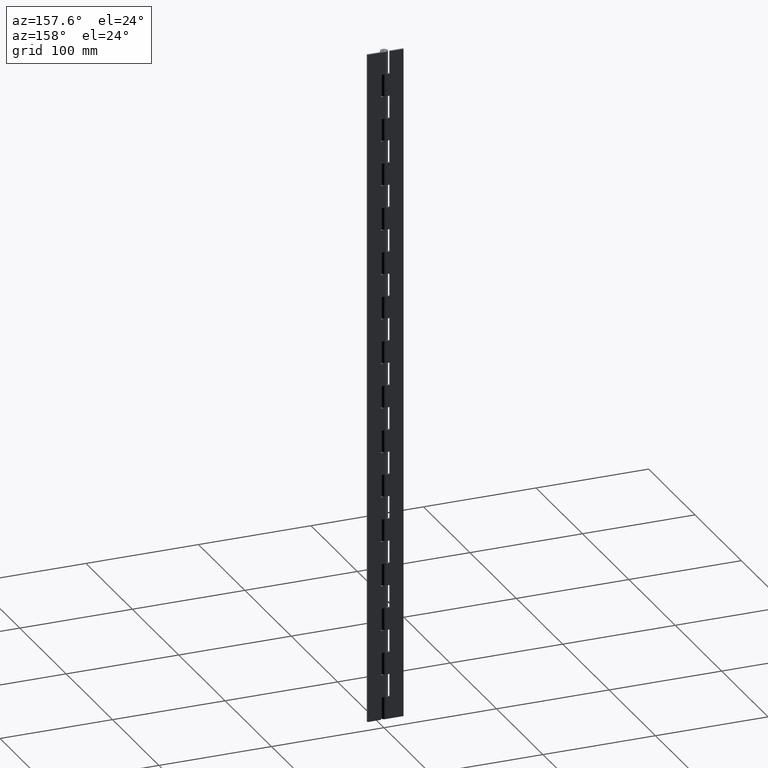
[diagram: clean part render]
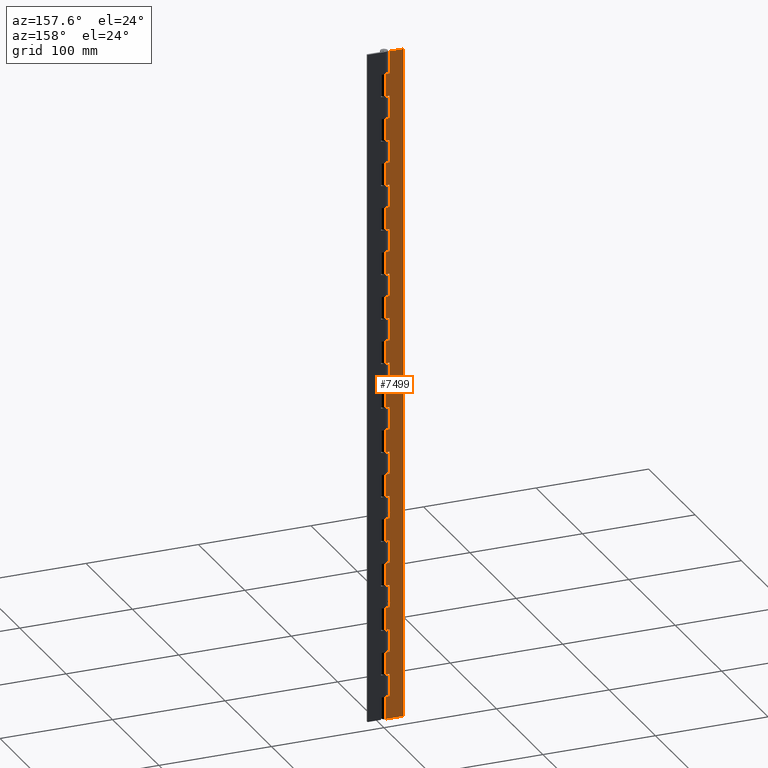
[diagram: same view with one face highlighted and labeled with its STEP entity id]
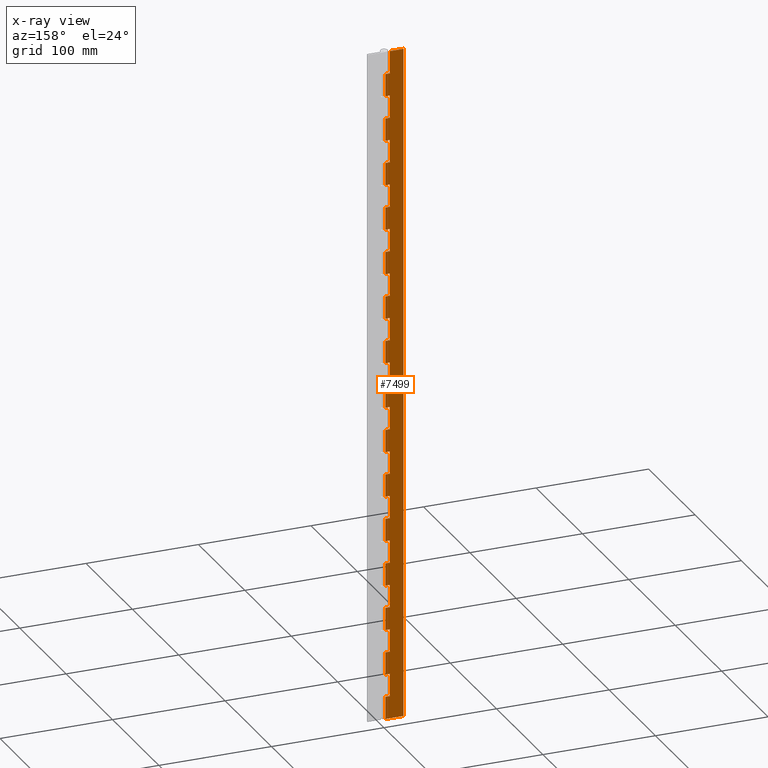
[diagram: x-ray of the same camera — body ghosted, the highlighted face saturated]
A machine part, auxiliary view. The second image highlights one B-rep face of the part: STEP entity #7499.
The next image is the same camera in x-ray: the body ghosted, the highlighted face saturated — about 0% of this face is hidden behind the body in this view.
In plain terms, the highlighted face is a freeform B-spline surface patch.
Its self-contained STEP definition (entity closure, byte-faithful):
#4469=CARTESIAN_POINT('',(1.989998E-016,3.250000000000000,20.000021999999952));
#4470=VERTEX_POINT('',#4469);
#4490=CARTESIAN_POINT('',(-4.0,3.250000000000000,20.000021999999952));
#4491=VERTEX_POINT('',#4490);
#4492=CARTESIAN_POINT('',(1.989998E-016,3.250000000000000,20.000021999999952));
#4493=CARTESIAN_POINT('',(-4.0,3.250000000000000,20.000021999999952));
#4494=QUASI_UNIFORM_CURVE('',1,(#4492,#4493),.UNSPECIFIED.,.F.,.U.);
#4495=EDGE_CURVE('',#4470,#4491,#4494,.T.);
#4545=CARTESIAN_POINT('',(1.989998E-016,3.250000000000000,40.000021999999952));
#4546=VERTEX_POINT('',#4545);
#4603=CARTESIAN_POINT('',(-4.0,3.250000000000000,40.000021999999952));
#4604=VERTEX_POINT('',#4603);
#4610=CARTESIAN_POINT('',(-4.0,3.250000000000000,40.000021999999952));
#4611=CARTESIAN_POINT('',(1.989998E-016,3.250000000000000,40.000021999999952));
#4612=QUASI_UNIFORM_CURVE('',1,(#4610,#4611),.UNSPECIFIED.,.F.,.U.);
#4613=EDGE_CURVE('',#4604,#4546,#4612,.T.);
#4624=CARTESIAN_POINT('',(-4.0,3.250000000000000,20.000021999999952));
#4625=CARTESIAN_POINT('',(-4.0,3.250000000000000,40.000021999999952));
#4626=QUASI_UNIFORM_CURVE('',1,(#4624,#4625),.UNSPECIFIED.,.F.,.U.);
#4627=EDGE_CURVE('',#4491,#4604,#4626,.T.);
#4645=CARTESIAN_POINT('',(1.989998E-016,3.250000000000000,60.000022000000001));
#4646=VERTEX_POINT('',#4645);
#4666=CARTESIAN_POINT('',(-4.0,3.250000000000000,60.000022000000001));
#4667=VERTEX_POINT('',#4666);
#4668=CARTESIAN_POINT('',(1.989998E-016,3.250000000000000,60.000022000000001));
#4669=CARTESIAN_POINT('',(-4.0,3.250000000000000,60.000022000000001));
#4670=QUASI_UNIFORM_CURVE('',1,(#4668,#4669),.UNSPECIFIED.,.F.,.U.);
#4671=EDGE_CURVE('',#4646,#4667,#4670,.T.);
#4721=CARTESIAN_POINT('',(1.989998E-016,3.250000000000000,80.000022000000001));
#4722=VERTEX_POINT('',#4721);
#4779=CARTESIAN_POINT('',(-4.0,3.250000000000000,80.000022000000001));
#4780=VERTEX_POINT('',#4779);
#4786=CARTESIAN_POINT('',(-4.0,3.250000000000000,80.000022000000001));
#4787=CARTESIAN_POINT('',(1.989998E-016,3.250000000000000,80.000022000000001));
#4788=QUASI_UNIFORM_CURVE('',1,(#4786,#4787),.UNSPECIFIED.,.F.,.U.);
#4789=EDGE_CURVE('',#4780,#4722,#4788,.T.);
#4800=CARTESIAN_POINT('',(-4.0,3.250000000000000,60.000022000000001));
#4801=CARTESIAN_POINT('',(-4.0,3.250000000000000,80.000022000000001));
#4802=QUASI_UNIFORM_CURVE('',1,(#4800,#4801),.UNSPECIFIED.,.F.,.U.);
#4803=EDGE_CURVE('',#4667,#4780,#4802,.T.);
#4821=CARTESIAN_POINT('',(1.989998E-016,3.250000000000000,100.000022000000000));
#4822=VERTEX_POINT('',#4821);
#4842=CARTESIAN_POINT('',(-4.0,3.250000000000000,100.000022000000000));
#4843=VERTEX_POINT('',#4842);
#4844=CARTESIAN_POINT('',(1.989998E-016,3.250000000000000,100.000022000000000));
#4845=CARTESIAN_POINT('',(-4.0,3.250000000000000,100.000022000000000));
#4846=QUASI_UNIFORM_CURVE('',1,(#4844,#4845),.UNSPECIFIED.,.F.,.U.);
#4847=EDGE_CURVE('',#4822,#4843,#4846,.T.);
#4897=CARTESIAN_POINT('',(1.989998E-016,3.250000000000000,120.000022000000000));
#4898=VERTEX_POINT('',#4897);
#4955=CARTESIAN_POINT('',(-4.0,3.250000000000000,120.000022000000000));
#4956=VERTEX_POINT('',#4955);
#4962=CARTESIAN_POINT('',(-4.0,3.250000000000000,120.000022000000000));
#4963=CARTESIAN_POINT('',(1.989998E-016,3.250000000000000,120.000022000000000));
#4964=QUASI_UNIFORM_CURVE('',1,(#4962,#4963),.UNSPECIFIED.,.F.,.U.);
#4965=EDGE_CURVE('',#4956,#4898,#4964,.T.);
#4976=CARTESIAN_POINT('',(-4.0,3.250000000000000,100.000022000000000));
#4977=CARTESIAN_POINT('',(-4.0,3.250000000000000,120.000022000000000));
#4978=QUASI_UNIFORM_CURVE('',1,(#4976,#4977),.UNSPECIFIED.,.F.,.U.);
#4979=EDGE_CURVE('',#4843,#4956,#4978,.T.);
#4997=CARTESIAN_POINT('',(1.989998E-016,3.250000000000000,140.000022000000000));
#4998=VERTEX_POINT('',#4997);
#5018=CARTESIAN_POINT('',(-4.0,3.250000000000000,140.000022000000000));
#5019=VERTEX_POINT('',#5018);
#5020=CARTESIAN_POINT('',(1.989998E-016,3.250000000000000,140.000022000000000));
#5021=CARTESIAN_POINT('',(-4.0,3.250000000000000,140.000022000000000));
#5022=QUASI_UNIFORM_CURVE('',1,(#5020,#5021),.UNSPECIFIED.,.F.,.U.);
#5023=EDGE_CURVE('',#4998,#5019,#5022,.T.);
#5073=CARTESIAN_POINT('',(1.989998E-016,3.250000000000000,160.000022000000000));
#5074=VERTEX_POINT('',#5073);
#5131=CARTESIAN_POINT('',(-4.0,3.250000000000000,160.000022000000000));
#5132=VERTEX_POINT('',#5131);
#5138=CARTESIAN_POINT('',(-4.0,3.250000000000000,160.000022000000000));
#5139=CARTESIAN_POINT('',(1.989998E-016,3.250000000000000,160.000022000000000));
#5140=QUASI_UNIFORM_CURVE('',1,(#5138,#5139),.UNSPECIFIED.,.F.,.U.);
#5141=EDGE_CURVE('',#5132,#5074,#5140,.T.);
#5152=CARTESIAN_POINT('',(-4.0,3.250000000000000,140.000022000000000));
#5153=CARTESIAN_POINT('',(-4.0,3.250000000000000,160.000022000000000));
#5154=QUASI_UNIFORM_CURVE('',1,(#5152,#5153),.UNSPECIFIED.,.F.,.U.);
#5155=EDGE_CURVE('',#5019,#5132,#5154,.T.);
#5173=CARTESIAN_POINT('',(1.989998E-016,3.250000000000000,180.000022000000000));
#5174=VERTEX_POINT('',#5173);
#5194=CARTESIAN_POINT('',(-4.0,3.250000000000000,180.000022000000000));
#5195=VERTEX_POINT('',#5194);
#5196=CARTESIAN_POINT('',(1.989998E-016,3.250000000000000,180.000022000000000));
#5197=CARTESIAN_POINT('',(-4.0,3.250000000000000,180.000022000000000));
#5198=QUASI_UNIFORM_CURVE('',1,(#5196,#5197),.UNSPECIFIED.,.F.,.U.);
#5199=EDGE_CURVE('',#5174,#5195,#5198,.T.);
#5249=CARTESIAN_POINT('',(1.989998E-016,3.250000000000000,200.000022000000000));
#5250=VERTEX_POINT('',#5249);
#5307=CARTESIAN_POINT('',(-4.0,3.250000000000000,200.000022000000000));
#5308=VERTEX_POINT('',#5307);
#5314=CARTESIAN_POINT('',(-4.0,3.250000000000000,200.000022000000000));
#5315=CARTESIAN_POINT('',(1.989998E-016,3.250000000000000,200.000022000000000));
#5316=QUASI_UNIFORM_CURVE('',1,(#5314,#5315),.UNSPECIFIED.,.F.,.U.);
#5317=EDGE_CURVE('',#5308,#5250,#5316,.T.);
#5328=CARTESIAN_POINT('',(-4.0,3.250000000000000,180.000022000000000));
#5329=CARTESIAN_POINT('',(-4.0,3.250000000000000,200.000022000000000));
#5330=QUASI_UNIFORM_CURVE('',1,(#5328,#5329),.UNSPECIFIED.,.F.,.U.);
#5331=EDGE_CURVE('',#5195,#5308,#5330,.T.);
#5349=CARTESIAN_POINT('',(1.989998E-016,3.250000000000000,220.000022000000000));
#5350=VERTEX_POINT('',#5349);
#5370=CARTESIAN_POINT('',(-4.0,3.250000000000000,220.000022000000000));
#5371=VERTEX_POINT('',#5370);
#5372=CARTESIAN_POINT('',(1.989998E-016,3.250000000000000,220.000022000000000));
#5373=CARTESIAN_POINT('',(-4.0,3.250000000000000,220.000022000000000));
#5374=QUASI_UNIFORM_CURVE('',1,(#5372,#5373),.UNSPECIFIED.,.F.,.U.);
#5375=EDGE_CURVE('',#5350,#5371,#5374,.T.);
#5425=CARTESIAN_POINT('',(1.989998E-016,3.250000000000000,240.000022000000000));
#5426=VERTEX_POINT('',#5425);
#5483=CARTESIAN_POINT('',(-4.0,3.250000000000000,240.000022000000000));
#5484=VERTEX_POINT('',#5483);
#5490=CARTESIAN_POINT('',(-4.0,3.250000000000000,240.000022000000000));
#5491=CARTESIAN_POINT('',(1.989998E-016,3.250000000000000,240.000022000000000));
#5492=QUASI_UNIFORM_CURVE('',1,(#5490,#5491),.UNSPECIFIED.,.F.,.U.);
#5493=EDGE_CURVE('',#5484,#5426,#5492,.T.);
#5504=CARTESIAN_POINT('',(-4.0,3.250000000000000,220.000022000000000));
#5505=CARTESIAN_POINT('',(-4.0,3.250000000000000,240.000022000000000));
#5506=QUASI_UNIFORM_CURVE('',1,(#5504,#5505),.UNSPECIFIED.,.F.,.U.);
#5507=EDGE_CURVE('',#5371,#5484,#5506,.T.);
#5525=CARTESIAN_POINT('',(1.989998E-016,3.250000000000000,260.000022000000000));
#5526=VERTEX_POINT('',#5525);
#5546=CARTESIAN_POINT('',(-4.0,3.250000000000000,260.000022000000000));
#5547=VERTEX_POINT('',#5546);
#5548=CARTESIAN_POINT('',(1.989998E-016,3.250000000000000,260.000022000000000));
#5549=CARTESIAN_POINT('',(-4.0,3.250000000000000,260.000022000000000));
#5550=QUASI_UNIFORM_CURVE('',1,(#5548,#5549),.UNSPECIFIED.,.F.,.U.);
#5551=EDGE_CURVE('',#5526,#5547,#5550,.T.);
#5601=CARTESIAN_POINT('',(1.989998E-016,3.250000000000000,280.000022000000000));
#5602=VERTEX_POINT('',#5601);
#5659=CARTESIAN_POINT('',(-4.0,3.250000000000000,280.000022000000000));
#5660=VERTEX_POINT('',#5659);
#5666=CARTESIAN_POINT('',(-4.0,3.250000000000000,280.000022000000000));
#5667=CARTESIAN_POINT('',(1.989998E-016,3.250000000000000,280.000022000000000));
#5668=QUASI_UNIFORM_CURVE('',1,(#5666,#5667),.UNSPECIFIED.,.F.,.U.);
#5669=EDGE_CURVE('',#5660,#5602,#5668,.T.);
#5680=CARTESIAN_POINT('',(-4.0,3.250000000000000,260.000022000000000));
#5681=CARTESIAN_POINT('',(-4.0,3.250000000000000,280.000022000000000));
#5682=QUASI_UNIFORM_CURVE('',1,(#5680,#5681),.UNSPECIFIED.,.F.,.U.);
#5683=EDGE_CURVE('',#5547,#5660,#5682,.T.);
#5701=CARTESIAN_POINT('',(1.989998E-016,3.250000000000000,300.000022000000000));
#5702=VERTEX_POINT('',#5701);
#5722=CARTESIAN_POINT('',(-4.0,3.250000000000000,300.000022000000000));
#5723=VERTEX_POINT('',#5722);
#5724=CARTESIAN_POINT('',(1.989998E-016,3.250000000000000,300.000022000000000));
#5725=CARTESIAN_POINT('',(-4.0,3.250000000000000,300.000022000000000));
#5726=QUASI_UNIFORM_CURVE('',1,(#5724,#5725),.UNSPECIFIED.,.F.,.U.);
#5727=EDGE_CURVE('',#5702,#5723,#5726,.T.);
#5777=CARTESIAN_POINT('',(1.989998E-016,3.250000000000000,320.000022000000000));
#5778=VERTEX_POINT('',#5777);
#5835=CARTESIAN_POINT('',(-4.0,3.250000000000000,320.000022000000000));
#5836=VERTEX_POINT('',#5835);
#5842=CARTESIAN_POINT('',(-4.0,3.250000000000000,320.000022000000000));
#5843=CARTESIAN_POINT('',(1.989998E-016,3.250000000000000,320.000022000000000));
#5844=QUASI_UNIFORM_CURVE('',1,(#5842,#5843),.UNSPECIFIED.,.F.,.U.);
#5845=EDGE_CURVE('',#5836,#5778,#5844,.T.);
#5856=CARTESIAN_POINT('',(-4.0,3.250000000000000,300.000022000000000));
#5857=CARTESIAN_POINT('',(-4.0,3.250000000000000,320.000022000000000));
#5858=QUASI_UNIFORM_CURVE('',1,(#5856,#5857),.UNSPECIFIED.,.F.,.U.);
#5859=EDGE_CURVE('',#5723,#5836,#5858,.T.);
#5877=CARTESIAN_POINT('',(1.989998E-016,3.250000000000000,340.000022000000000));
#5878=VERTEX_POINT('',#5877);
#5898=CARTESIAN_POINT('',(-4.0,3.250000000000000,340.000022000000000));
#5899=VERTEX_POINT('',#5898);
#5900=CARTESIAN_POINT('',(1.989998E-016,3.250000000000000,340.000022000000000));
#5901=CARTESIAN_POINT('',(-4.0,3.250000000000000,340.000022000000000));
#5902=QUASI_UNIFORM_CURVE('',1,(#5900,#5901),.UNSPECIFIED.,.F.,.U.);
#5903=EDGE_CURVE('',#5878,#5899,#5902,.T.);
#5953=CARTESIAN_POINT('',(1.989998E-016,3.250000000000000,360.000022000000000));
#5954=VERTEX_POINT('',#5953);
#6011=CARTESIAN_POINT('',(-4.0,3.250000000000000,360.000022000000000));
#6012=VERTEX_POINT('',#6011);
#6018=CARTESIAN_POINT('',(-4.0,3.250000000000000,360.000022000000000));
#6019=CARTESIAN_POINT('',(1.989998E-016,3.250000000000000,360.000022000000000));
#6020=QUASI_UNIFORM_CURVE('',1,(#6018,#6019),.UNSPECIFIED.,.F.,.U.);
#6021=EDGE_CURVE('',#6012,#5954,#6020,.T.);
#6032=CARTESIAN_POINT('',(-4.0,3.250000000000000,340.000022000000000));
#6033=CARTESIAN_POINT('',(-4.0,3.250000000000000,360.000022000000000));
#6034=QUASI_UNIFORM_CURVE('',1,(#6032,#6033),.UNSPECIFIED.,.F.,.U.);
#6035=EDGE_CURVE('',#5899,#6012,#6034,.T.);
#6053=CARTESIAN_POINT('',(1.989998E-016,3.250000000000000,380.000022000000000));
#6054=VERTEX_POINT('',#6053);
#6074=CARTESIAN_POINT('',(-4.0,3.250000000000000,380.000022000000000));
#6075=VERTEX_POINT('',#6074);
#6076=CARTESIAN_POINT('',(1.989998E-016,3.250000000000000,380.000022000000000));
#6077=CARTESIAN_POINT('',(-4.0,3.250000000000000,380.000022000000000));
#6078=QUASI_UNIFORM_CURVE('',1,(#6076,#6077),.UNSPECIFIED.,.F.,.U.);
#6079=EDGE_CURVE('',#6054,#6075,#6078,.T.);
#6129=CARTESIAN_POINT('',(1.989998E-016,3.250000000000000,400.000022000000000));
#6130=VERTEX_POINT('',#6129);
#6187=CARTESIAN_POINT('',(-4.0,3.250000000000000,400.000022000000000));
#6188=VERTEX_POINT('',#6187);
#6194=CARTESIAN_POINT('',(-4.0,3.250000000000000,400.000022000000000));
#6195=CARTESIAN_POINT('',(1.989998E-016,3.250000000000000,400.000022000000000));
#6196=QUASI_UNIFORM_CURVE('',1,(#6194,#6195),.UNSPECIFIED.,.F.,.U.);
#6197=EDGE_CURVE('',#6188,#6130,#6196,.T.);
#6208=CARTESIAN_POINT('',(-4.0,3.250000000000000,380.000022000000000));
#6209=CARTESIAN_POINT('',(-4.0,3.250000000000000,400.000022000000000));
#6210=QUASI_UNIFORM_CURVE('',1,(#6208,#6209),.UNSPECIFIED.,.F.,.U.);
#6211=EDGE_CURVE('',#6075,#6188,#6210,.T.);
#6229=CARTESIAN_POINT('',(1.989998E-016,3.250000000000000,420.000021999999890));
#6230=VERTEX_POINT('',#6229);
#6250=CARTESIAN_POINT('',(-4.0,3.250000000000000,420.000021999999890));
#6251=VERTEX_POINT('',#6250);
#6252=CARTESIAN_POINT('',(1.989998E-016,3.250000000000000,420.000021999999890));
#6253=CARTESIAN_POINT('',(-4.0,3.250000000000000,420.000021999999890));
#6254=QUASI_UNIFORM_CURVE('',1,(#6252,#6253),.UNSPECIFIED.,.F.,.U.);
#6255=EDGE_CURVE('',#6230,#6251,#6254,.T.);
#6305=CARTESIAN_POINT('',(1.989998E-016,3.250000000000000,440.000022000000000));
#6306=VERTEX_POINT('',#6305);
#6363=CARTESIAN_POINT('',(-4.0,3.250000000000000,440.000022000000000));
#6364=VERTEX_POINT('',#6363);
#6370=CARTESIAN_POINT('',(-4.0,3.250000000000000,440.000022000000000));
#6371=CARTESIAN_POINT('',(1.989998E-016,3.250000000000000,440.000022000000000));
#6372=QUASI_UNIFORM_CURVE('',1,(#6370,#6371),.UNSPECIFIED.,.F.,.U.);
#6373=EDGE_CURVE('',#6364,#6306,#6372,.T.);
#6384=CARTESIAN_POINT('',(-4.0,3.250000000000000,420.000021999999890));
#6385=CARTESIAN_POINT('',(-4.0,3.250000000000000,440.000022000000000));
#6386=QUASI_UNIFORM_CURVE('',1,(#6384,#6385),.UNSPECIFIED.,.F.,.U.);
#6387=EDGE_CURVE('',#6251,#6364,#6386,.T.);
#6405=CARTESIAN_POINT('',(1.989998E-016,3.250000000000000,460.000022000000000));
#6406=VERTEX_POINT('',#6405);
#6426=CARTESIAN_POINT('',(-4.0,3.250000000000000,460.000022000000000));
#6427=VERTEX_POINT('',#6426);
#6428=CARTESIAN_POINT('',(1.989998E-016,3.250000000000000,460.000022000000000));
#6429=CARTESIAN_POINT('',(-4.0,3.250000000000000,460.000022000000000));
#6430=QUASI_UNIFORM_CURVE('',1,(#6428,#6429),.UNSPECIFIED.,.F.,.U.);
#6431=EDGE_CURVE('',#6406,#6427,#6430,.T.);
#6481=CARTESIAN_POINT('',(1.989998E-016,3.250000000000000,480.000022000000000));
#6482=VERTEX_POINT('',#6481);
#6539=CARTESIAN_POINT('',(-4.0,3.250000000000000,480.000022000000000));
#6540=VERTEX_POINT('',#6539);
#6546=CARTESIAN_POINT('',(-4.0,3.250000000000000,480.000022000000000));
#6547=CARTESIAN_POINT('',(1.989998E-016,3.250000000000000,480.000022000000000));
#6548=QUASI_UNIFORM_CURVE('',1,(#6546,#6547),.UNSPECIFIED.,.F.,.U.);
#6549=EDGE_CURVE('',#6540,#6482,#6548,.T.);
#6560=CARTESIAN_POINT('',(-4.0,3.250000000000000,460.000022000000000));
#6561=CARTESIAN_POINT('',(-4.0,3.250000000000000,480.000022000000000));
#6562=QUASI_UNIFORM_CURVE('',1,(#6560,#6561),.UNSPECIFIED.,.F.,.U.);
#6563=EDGE_CURVE('',#6427,#6540,#6562,.T.);
#6581=CARTESIAN_POINT('',(1.989998E-016,3.250000000000000,500.000022000000110));
#6582=VERTEX_POINT('',#6581);
#6602=CARTESIAN_POINT('',(-4.0,3.250000000000000,500.000022000000110));
#6603=VERTEX_POINT('',#6602);
#6604=CARTESIAN_POINT('',(1.989998E-016,3.250000000000000,500.000022000000110));
#6605=CARTESIAN_POINT('',(-4.0,3.250000000000000,500.000022000000110));
#6606=QUASI_UNIFORM_CURVE('',1,(#6604,#6605),.UNSPECIFIED.,.F.,.U.);
#6607=EDGE_CURVE('',#6582,#6603,#6606,.T.);
#6657=CARTESIAN_POINT('',(1.989998E-016,3.250000000000000,520.000021999999940));
#6658=VERTEX_POINT('',#6657);
#6715=CARTESIAN_POINT('',(-4.0,3.250000000000000,520.000021999999940));
#6716=VERTEX_POINT('',#6715);
#6722=CARTESIAN_POINT('',(-4.0,3.250000000000000,520.000021999999940));
#6723=CARTESIAN_POINT('',(1.989998E-016,3.250000000000000,520.000021999999940));
#6724=QUASI_UNIFORM_CURVE('',1,(#6722,#6723),.UNSPECIFIED.,.F.,.U.);
#6725=EDGE_CURVE('',#6716,#6658,#6724,.T.);
#6736=CARTESIAN_POINT('',(-4.0,3.250000000000000,500.000022000000110));
#6737=CARTESIAN_POINT('',(-4.0,3.250000000000000,520.000021999999940));
#6738=QUASI_UNIFORM_CURVE('',1,(#6736,#6737),.UNSPECIFIED.,.F.,.U.);
#6739=EDGE_CURVE('',#6603,#6716,#6738,.T.);
#6785=CARTESIAN_POINT('',(0.0,3.250000000000000,540.000021999999940));
#6786=VERTEX_POINT('',#6785);
#6806=CARTESIAN_POINT('',(-4.0,3.250000000000000,540.000021999999940));
#6807=VERTEX_POINT('',#6806);
#6808=CARTESIAN_POINT('',(0.0,3.250000000000000,540.000021999999940));
#6809=CARTESIAN_POINT('',(-4.0,3.250000000000000,540.000021999999940));
#6810=QUASI_UNIFORM_CURVE('',1,(#6808,#6809),.UNSPECIFIED.,.F.,.U.);
#6811=EDGE_CURVE('',#6786,#6807,#6810,.T.);
#6835=CARTESIAN_POINT('',(-4.0,3.250000000000000,560.000021999999940));
#6836=VERTEX_POINT('',#6835);
#6842=CARTESIAN_POINT('',(0.0,3.250000000000000,560.000021999999940));
#6843=VERTEX_POINT('',#6842);
#6844=CARTESIAN_POINT('',(-4.0,3.250000000000000,560.000021999999940));
#6845=CARTESIAN_POINT('',(0.0,3.250000000000000,560.000021999999940));
#6846=QUASI_UNIFORM_CURVE('',1,(#6844,#6845),.UNSPECIFIED.,.F.,.U.);
#6847=EDGE_CURVE('',#6836,#6843,#6846,.T.);
#6912=CARTESIAN_POINT('',(-4.0,3.250000000000000,540.000021999999940));
#6913=CARTESIAN_POINT('',(-4.0,3.250000000000000,560.000021999999940));
#6914=QUASI_UNIFORM_CURVE('',1,(#6912,#6913),.UNSPECIFIED.,.F.,.U.);
#6915=EDGE_CURVE('',#6807,#6836,#6914,.T.);
#6933=CARTESIAN_POINT('',(-4.0,3.250000000000000,580.000022000000060));
#6934=VERTEX_POINT('',#6933);
#6940=CARTESIAN_POINT('',(-4.0,3.250000000000000,600.000022000000060));
#6941=VERTEX_POINT('',#6940);
#6942=CARTESIAN_POINT('',(-4.0,3.250000000000000,580.000022000000060));
#6943=CARTESIAN_POINT('',(-4.0,3.250000000000000,600.000022000000060));
#6944=QUASI_UNIFORM_CURVE('',1,(#6942,#6943),.UNSPECIFIED.,.F.,.U.);
#6945=EDGE_CURVE('',#6934,#6941,#6944,.T.);
#6997=CARTESIAN_POINT('',(0.0,3.250000000000000,580.000022000000060));
#6998=VERTEX_POINT('',#6997);
#7018=CARTESIAN_POINT('',(0.0,3.250000000000000,580.000022000000060));
#7019=CARTESIAN_POINT('',(-4.0,3.250000000000000,580.000022000000060));
#7020=QUASI_UNIFORM_CURVE('',1,(#7018,#7019),.UNSPECIFIED.,.F.,.U.);
#7021=EDGE_CURVE('',#6998,#6934,#7020,.T.);
#7037=CARTESIAN_POINT('',(1.989985E-016,3.250000000000000,0.0));
#7038=VERTEX_POINT('',#7037);
#7039=CARTESIAN_POINT('',(-16.0,3.250000000000000,0.0));
#7040=VERTEX_POINT('',#7039);
#7041=CARTESIAN_POINT('',(1.989985E-016,3.250000000000000,0.0));
#7042=CARTESIAN_POINT('',(-16.0,3.250000000000000,0.0));
#7043=QUASI_UNIFORM_CURVE('',1,(#7041,#7042),.UNSPECIFIED.,.F.,.U.);
#7044=EDGE_CURVE('',#7038,#7040,#7043,.T.);
#7123=CARTESIAN_POINT('',(-16.0,3.250000000000000,600.000022000000060));
#7124=VERTEX_POINT('',#7123);
#7125=CARTESIAN_POINT('',(-4.0,3.250000000000000,600.000022000000060));
#7126=CARTESIAN_POINT('',(-16.0,3.250000000000000,600.000022000000060));
#7127=QUASI_UNIFORM_CURVE('',1,(#7125,#7126),.UNSPECIFIED.,.F.,.U.);
#7128=EDGE_CURVE('',#6941,#7124,#7127,.T.);
#7166=CARTESIAN_POINT('',(0.0,3.250000000000000,580.000022000000060));
#7167=CARTESIAN_POINT('',(0.0,3.250000000000000,560.000021999999940));
#7168=QUASI_UNIFORM_CURVE('',1,(#7166,#7167),.UNSPECIFIED.,.F.,.U.);
#7169=EDGE_CURVE('',#6998,#6843,#7168,.T.);
#7366=CARTESIAN_POINT('',(-16.0,3.250000000000000,600.000022000000060));
#7367=CARTESIAN_POINT('',(-16.0,3.250000000000000,0.0));
#7368=QUASI_UNIFORM_CURVE('',1,(#7366,#7367),.UNSPECIFIED.,.F.,.U.);
#7369=EDGE_CURVE('',#7124,#7040,#7368,.T.);
#7374=CARTESIAN_POINT('',(-16.799199968988891,3.250000000000000,629.969999406500050));
#7375=CARTESIAN_POINT('',(-16.799199968988891,3.250000000000000,-29.970014957427448));
#7376=CARTESIAN_POINT('',(0.799200398142338,3.250000000000000,629.969999406500050));
#7377=CARTESIAN_POINT('',(0.799200398142338,3.250000000000000,-29.970014957427448));
#7378=B_SPLINE_SURFACE_WITH_KNOTS('',1,1,((#7374,#7376),(#7375,#7377)),.UNSPECIFIED.,.F.,.F.,.U.,(2,2),(2,2),(0.0,659.940014363927500),(0.0,17.598400367131230),.UNSPECIFIED.);
#7379=CARTESIAN_POINT('',(1.989998E-016,3.250000000000000,60.000022000000001));
#7380=CARTESIAN_POINT('',(1.989998E-016,3.250000000000000,40.000021999999952));
#7381=QUASI_UNIFORM_CURVE('',1,(#7379,#7380),.UNSPECIFIED.,.F.,.U.);
#7382=EDGE_CURVE('',#4646,#4546,#7381,.T.);
#7383=ORIENTED_EDGE('',*,*,#7382,.T.);
#7384=ORIENTED_EDGE('',*,*,#4613,.F.);
#7385=ORIENTED_EDGE('',*,*,#4627,.F.);
#7386=ORIENTED_EDGE('',*,*,#4495,.F.);
#7387=CARTESIAN_POINT('',(1.989998E-016,3.250000000000000,20.000021999999952));
#7388=CARTESIAN_POINT('',(1.989985E-016,3.250000000000000,0.0));
#7389=QUASI_UNIFORM_CURVE('',1,(#7387,#7388),.UNSPECIFIED.,.F.,.U.);
#7390=EDGE_CURVE('',#4470,#7038,#7389,.T.);
#7391=ORIENTED_EDGE('',*,*,#7390,.T.);
#7392=ORIENTED_EDGE('',*,*,#7044,.T.);
#7393=ORIENTED_EDGE('',*,*,#7369,.F.);
#7394=ORIENTED_EDGE('',*,*,#7128,.F.);
#7395=ORIENTED_EDGE('',*,*,#6945,.F.);
#7396=ORIENTED_EDGE('',*,*,#7021,.F.);
#7397=ORIENTED_EDGE('',*,*,#7169,.T.);
#7398=ORIENTED_EDGE('',*,*,#6847,.F.);
#7399=ORIENTED_EDGE('',*,*,#6915,.F.);
#7400=ORIENTED_EDGE('',*,*,#6811,.F.);
#7401=CARTESIAN_POINT('',(0.0,3.250000000000000,540.000021999999940));
#7402=CARTESIAN_POINT('',(1.989998E-016,3.250000000000000,520.000021999999940));
#7403=QUASI_UNIFORM_CURVE('',1,(#7401,#7402),.UNSPECIFIED.,.F.,.U.);
#7404=EDGE_CURVE('',#6786,#6658,#7403,.T.);
#7405=ORIENTED_EDGE('',*,*,#7404,.T.);
#7406=ORIENTED_EDGE('',*,*,#6725,.F.);
#7407=ORIENTED_EDGE('',*,*,#6739,.F.);
#7408=ORIENTED_EDGE('',*,*,#6607,.F.);
#7409=CARTESIAN_POINT('',(1.989998E-016,3.250000000000000,500.000022000000110));
#7410=CARTESIAN_POINT('',(1.989998E-016,3.250000000000000,480.000022000000000));
#7411=QUASI_UNIFORM_CURVE('',1,(#7409,#7410),.UNSPECIFIED.,.F.,.U.);
#7412=EDGE_CURVE('',#6582,#6482,#7411,.T.);
#7413=ORIENTED_EDGE('',*,*,#7412,.T.);
#7414=ORIENTED_EDGE('',*,*,#6549,.F.);
#7415=ORIENTED_EDGE('',*,*,#6563,.F.);
#7416=ORIENTED_EDGE('',*,*,#6431,.F.);
#7417=CARTESIAN_POINT('',(1.989998E-016,3.250000000000000,460.000022000000000));
#7418=CARTESIAN_POINT('',(1.989998E-016,3.250000000000000,440.000022000000000));
#7419=QUASI_UNIFORM_CURVE('',1,(#7417,#7418),.UNSPECIFIED.,.F.,.U.);
#7420=EDGE_CURVE('',#6406,#6306,#7419,.T.);
#7421=ORIENTED_EDGE('',*,*,#7420,.T.);
#7422=ORIENTED_EDGE('',*,*,#6373,.F.);
#7423=ORIENTED_EDGE('',*,*,#6387,.F.);
#7424=ORIENTED_EDGE('',*,*,#6255,.F.);
#7425=CARTESIAN_POINT('',(1.989998E-016,3.250000000000000,420.000021999999890));
#7426=CARTESIAN_POINT('',(1.989998E-016,3.250000000000000,400.000022000000000));
#7427=QUASI_UNIFORM_CURVE('',1,(#7425,#7426),.UNSPECIFIED.,.F.,.U.);
#7428=EDGE_CURVE('',#6230,#6130,#7427,.T.);
#7429=ORIENTED_EDGE('',*,*,#7428,.T.);
#7430=ORIENTED_EDGE('',*,*,#6197,.F.);
#7431=ORIENTED_EDGE('',*,*,#6211,.F.);
#7432=ORIENTED_EDGE('',*,*,#6079,.F.);
#7433=CARTESIAN_POINT('',(1.989998E-016,3.250000000000000,380.000022000000000));
#7434=CARTESIAN_POINT('',(1.989998E-016,3.250000000000000,360.000022000000000));
#7435=QUASI_UNIFORM_CURVE('',1,(#7433,#7434),.UNSPECIFIED.,.F.,.U.);
#7436=EDGE_CURVE('',#6054,#5954,#7435,.T.);
#7437=ORIENTED_EDGE('',*,*,#7436,.T.);
#7438=ORIENTED_EDGE('',*,*,#6021,.F.);
#7439=ORIENTED_EDGE('',*,*,#6035,.F.);
#7440=ORIENTED_EDGE('',*,*,#5903,.F.);
#7441=CARTESIAN_POINT('',(1.989998E-016,3.250000000000000,340.000022000000000));
#7442=CARTESIAN_POINT('',(1.989998E-016,3.250000000000000,320.000022000000000));
#7443=QUASI_UNIFORM_CURVE('',1,(#7441,#7442),.UNSPECIFIED.,.F.,.U.);
#7444=EDGE_CURVE('',#5878,#5778,#7443,.T.);
#7445=ORIENTED_EDGE('',*,*,#7444,.T.);
#7446=ORIENTED_EDGE('',*,*,#5845,.F.);
#7447=ORIENTED_EDGE('',*,*,#5859,.F.);
#7448=ORIENTED_EDGE('',*,*,#5727,.F.);
#7449=CARTESIAN_POINT('',(1.989998E-016,3.250000000000000,300.000022000000000));
#7450=CARTESIAN_POINT('',(1.989998E-016,3.250000000000000,280.000022000000000));
#7451=QUASI_UNIFORM_CURVE('',1,(#7449,#7450),.UNSPECIFIED.,.F.,.U.);
#7452=EDGE_CURVE('',#5702,#5602,#7451,.T.);
#7453=ORIENTED_EDGE('',*,*,#7452,.T.);
#7454=ORIENTED_EDGE('',*,*,#5669,.F.);
#7455=ORIENTED_EDGE('',*,*,#5683,.F.);
#7456=ORIENTED_EDGE('',*,*,#5551,.F.);
#7457=CARTESIAN_POINT('',(1.989998E-016,3.250000000000000,260.000022000000000));
#7458=CARTESIAN_POINT('',(1.989998E-016,3.250000000000000,240.000022000000000));
#7459=QUASI_UNIFORM_CURVE('',1,(#7457,#7458),.UNSPECIFIED.,.F.,.U.);
#7460=EDGE_CURVE('',#5526,#5426,#7459,.T.);
#7461=ORIENTED_EDGE('',*,*,#7460,.T.);
#7462=ORIENTED_EDGE('',*,*,#5493,.F.);
#7463=ORIENTED_EDGE('',*,*,#5507,.F.);
#7464=ORIENTED_EDGE('',*,*,#5375,.F.);
#7465=CARTESIAN_POINT('',(1.989998E-016,3.250000000000000,220.000022000000000));
#7466=CARTESIAN_POINT('',(1.989998E-016,3.250000000000000,200.000022000000000));
#7467=QUASI_UNIFORM_CURVE('',1,(#7465,#7466),.UNSPECIFIED.,.F.,.U.);
#7468=EDGE_CURVE('',#5350,#5250,#7467,.T.);
#7469=ORIENTED_EDGE('',*,*,#7468,.T.);
#7470=ORIENTED_EDGE('',*,*,#5317,.F.);
#7471=ORIENTED_EDGE('',*,*,#5331,.F.);
#7472=ORIENTED_EDGE('',*,*,#5199,.F.);
#7473=CARTESIAN_POINT('',(1.989998E-016,3.250000000000000,180.000022000000000));
#7474=CARTESIAN_POINT('',(1.989998E-016,3.250000000000000,160.000022000000000));
#7475=QUASI_UNIFORM_CURVE('',1,(#7473,#7474),.UNSPECIFIED.,.F.,.U.);
#7476=EDGE_CURVE('',#5174,#5074,#7475,.T.);
#7477=ORIENTED_EDGE('',*,*,#7476,.T.);
#7478=ORIENTED_EDGE('',*,*,#5141,.F.);
#7479=ORIENTED_EDGE('',*,*,#5155,.F.);
#7480=ORIENTED_EDGE('',*,*,#5023,.F.);
#7481=CARTESIAN_POINT('',(1.989998E-016,3.250000000000000,140.000022000000000));
#7482=CARTESIAN_POINT('',(1.989998E-016,3.250000000000000,120.000022000000000));
#7483=QUASI_UNIFORM_CURVE('',1,(#7481,#7482),.UNSPECIFIED.,.F.,.U.);
#7484=EDGE_CURVE('',#4998,#4898,#7483,.T.);
#7485=ORIENTED_EDGE('',*,*,#7484,.T.);
#7486=ORIENTED_EDGE('',*,*,#4965,.F.);
#7487=ORIENTED_EDGE('',*,*,#4979,.F.);
#7488=ORIENTED_EDGE('',*,*,#4847,.F.);
#7489=CARTESIAN_POINT('',(1.989998E-016,3.250000000000000,100.000022000000000));
#7490=CARTESIAN_POINT('',(1.989998E-016,3.250000000000000,80.000022000000001));
#7491=QUASI_UNIFORM_CURVE('',1,(#7489,#7490),.UNSPECIFIED.,.F.,.U.);
#7492=EDGE_CURVE('',#4822,#4722,#7491,.T.);
#7493=ORIENTED_EDGE('',*,*,#7492,.T.);
#7494=ORIENTED_EDGE('',*,*,#4789,.F.);
#7495=ORIENTED_EDGE('',*,*,#4803,.F.);
#7496=ORIENTED_EDGE('',*,*,#4671,.F.);
#7497=EDGE_LOOP('',(#7383,#7384,#7385,#7386,#7391,#7392,#7393,#7394,#7395,#7396,#7397,#7398,#7399,#7400,#7405,#7406,#7407,#7408,#7413,#7414,#7415,#7416,#7421,#7422,#7423,#7424,#7429,#7430,#7431,#7432,#7437,#7438,#7439,#7440,#7445,#7446,#7447,#7448,#7453,#7454,#7455,#7456,#7461,#7462,#7463,#7464,#7469,#7470,#7471,#7472,#7477,#7478,#7479,#7480,#7485,#7486,#7487,#7488,#7493,#7494,#7495,#7496));
#7498=FACE_OUTER_BOUND('',#7497,.T.);
#7499=ADVANCED_FACE('',(#7498),#7378,.F.);